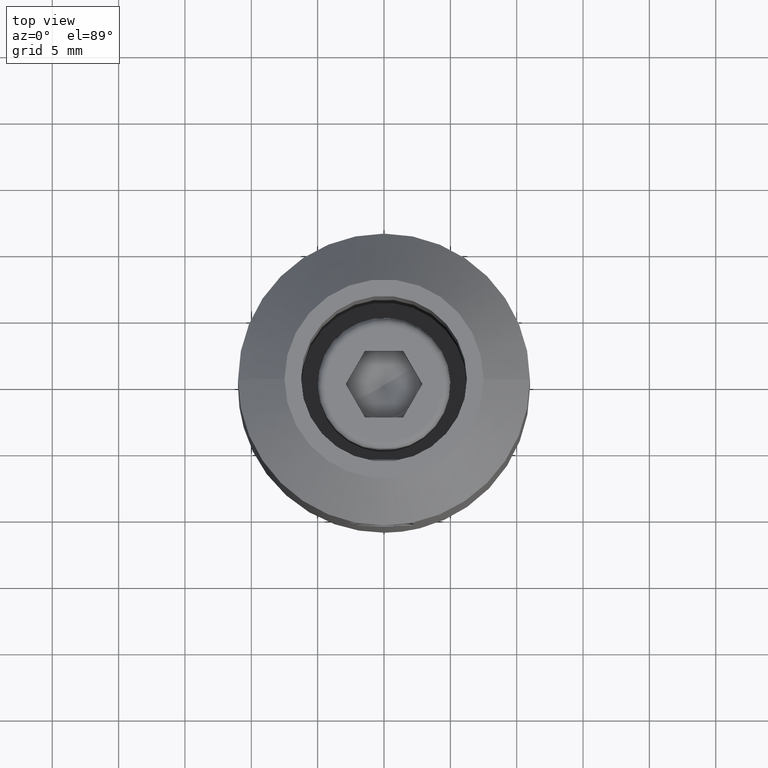
[diagram: clean part render]
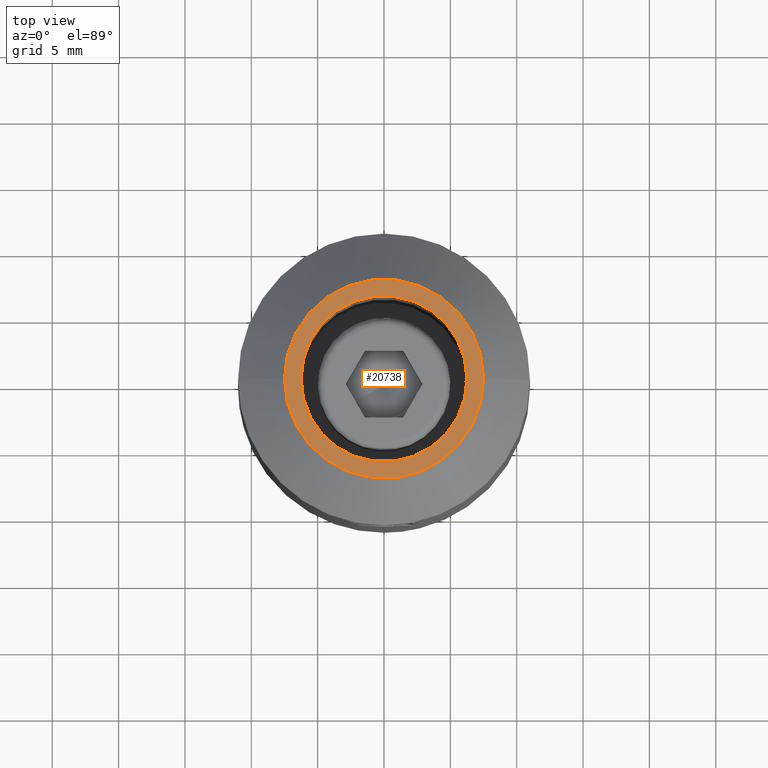
[diagram: same view with one face highlighted and labeled with its STEP entity id]
A machine part, top view. The second image highlights one B-rep face of the part: STEP entity #20738.
In plain terms, the highlighted planar face has unit normal (0, 0, 1).
Its self-contained STEP definition (entity closure, byte-faithful):
#409 = CARTESIAN_POINT ( 'NONE',  ( 7.499999999999978684, 1.132798289211299923E-15, 35.00000000000000000 ) ) ;
#503 = CARTESIAN_POINT ( 'NONE',  ( -7.499999999999978684, 0.000000000000000000, 35.00000000000000000 ) ) ;
#886 = CARTESIAN_POINT ( 'NONE',  ( 0.000000000000000000, 0.000000000000000000, 35.00000000000000000 ) ) ;
#1034 = EDGE_CURVE ( 'NONE', #8581, #4793, #1249, .T. ) ;
#1249 = CIRCLE ( 'NONE', #14318, 7.499999999999978684 ) ;
#2986 = CIRCLE ( 'NONE', #5259, 6.250000000000000000 ) ;
#3056 = FACE_BOUND ( 'NONE', #16756, .T. ) ;
#4338 = DIRECTION ( 'NONE',  ( 0.000000000000000000, 0.000000000000000000, 1.000000000000000000 ) ) ;
#4359 = ORIENTED_EDGE ( 'NONE', *, *, #9205, .T. ) ;
#4490 = CARTESIAN_POINT ( 'NONE',  ( 0.000000000000000000, 10.99999999999999467, 35.00000000000000000 ) ) ;
#4562 = CARTESIAN_POINT ( 'NONE',  ( 0.000000000000000000, 0.000000000000000000, 35.00000000000000000 ) ) ;
#4793 = VERTEX_POINT ( 'NONE', #409 ) ;
#5259 = AXIS2_PLACEMENT_3D ( 'NONE', #7771, #7849, #14665 ) ;
#7348 = ORIENTED_EDGE ( 'NONE', *, *, #20204, .T. ) ;
#7666 = DIRECTION ( 'NONE',  ( -0.000000000000000000, -0.000000000000000000, -1.000000000000000000 ) ) ;
#7771 = CARTESIAN_POINT ( 'NONE',  ( 0.000000000000000000, 0.000000000000000000, 35.00000000000000000 ) ) ;
#7849 = DIRECTION ( 'NONE',  ( -0.000000000000000000, -0.000000000000000000, -1.000000000000000000 ) ) ;
#7971 = CIRCLE ( 'NONE', #20912, 7.499999999999978684 ) ;
#8581 = VERTEX_POINT ( 'NONE', #503 ) ;
#9205 = EDGE_CURVE ( 'NONE', #9311, #20752, #2986, .T. ) ;
#9311 = VERTEX_POINT ( 'NONE', #14737 ) ;
#9610 = DIRECTION ( 'NONE',  ( 1.000000000000000000, 0.000000000000000000, -0.000000000000000000 ) ) ;
#9615 = DIRECTION ( 'NONE',  ( 0.000000000000000000, 0.000000000000000000, 1.000000000000000000 ) ) ;
#10750 = CARTESIAN_POINT ( 'NONE',  ( 0.000000000000000000, 0.000000000000000000, 35.00000000000000000 ) ) ;
#11532 = ORIENTED_EDGE ( 'NONE', *, *, #16878, .T. ) ;
#12422 = ORIENTED_EDGE ( 'NONE', *, *, #1034, .T. ) ;
#12831 = PLANE ( 'NONE',  #18362 ) ;
#13206 = DIRECTION ( 'NONE',  ( 1.000000000000000000, 0.000000000000000000, 0.000000000000000000 ) ) ;
#14039 = DIRECTION ( 'NONE',  ( 0.000000000000000000, 0.000000000000000000, 1.000000000000000000 ) ) ;
#14318 = AXIS2_PLACEMENT_3D ( 'NONE', #4562, #9615, #13206 ) ;
#14665 = DIRECTION ( 'NONE',  ( -1.000000000000000000, 0.000000000000000000, 0.000000000000000000 ) ) ;
#14737 = CARTESIAN_POINT ( 'NONE',  ( -6.250000000000000000, 0.000000000000000000, 35.00000000000000000 ) ) ;
#15489 = CARTESIAN_POINT ( 'NONE',  ( 6.250000000000000000, 7.654042494670957606E-16, 35.00000000000000000 ) ) ;
#16011 = EDGE_LOOP ( 'NONE', ( #12422, #11532 ) ) ;
#16651 = FACE_OUTER_BOUND ( 'NONE', #16011, .T. ) ;
#16756 = EDGE_LOOP ( 'NONE', ( #4359, #7348 ) ) ;
#16878 = EDGE_CURVE ( 'NONE', #4793, #8581, #7971, .T. ) ;
#17209 = CIRCLE ( 'NONE', #19790, 6.250000000000000000 ) ;
#17636 = DIRECTION ( 'NONE',  ( 1.000000000000000000, 0.000000000000000000, 0.000000000000000000 ) ) ;
#18015 = DIRECTION ( 'NONE',  ( -1.000000000000000000, 0.000000000000000000, 0.000000000000000000 ) ) ;
#18362 = AXIS2_PLACEMENT_3D ( 'NONE', #4490, #4338, #9610 ) ;
#19790 = AXIS2_PLACEMENT_3D ( 'NONE', #886, #7666, #18015 ) ;
#20204 = EDGE_CURVE ( 'NONE', #20752, #9311, #17209, .T. ) ;
#20738 = ADVANCED_FACE ( 'NONE', ( #16651, #3056 ), #12831, .T. ) ;
#20752 = VERTEX_POINT ( 'NONE', #15489 ) ;
#20912 = AXIS2_PLACEMENT_3D ( 'NONE', #10750, #14039, #17636 ) ;